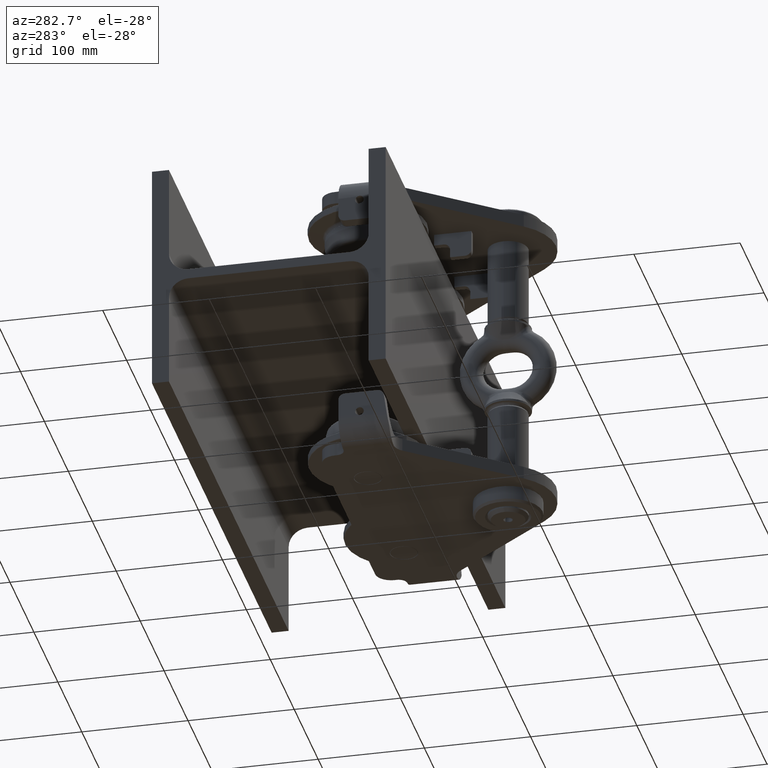
[diagram: clean part render]
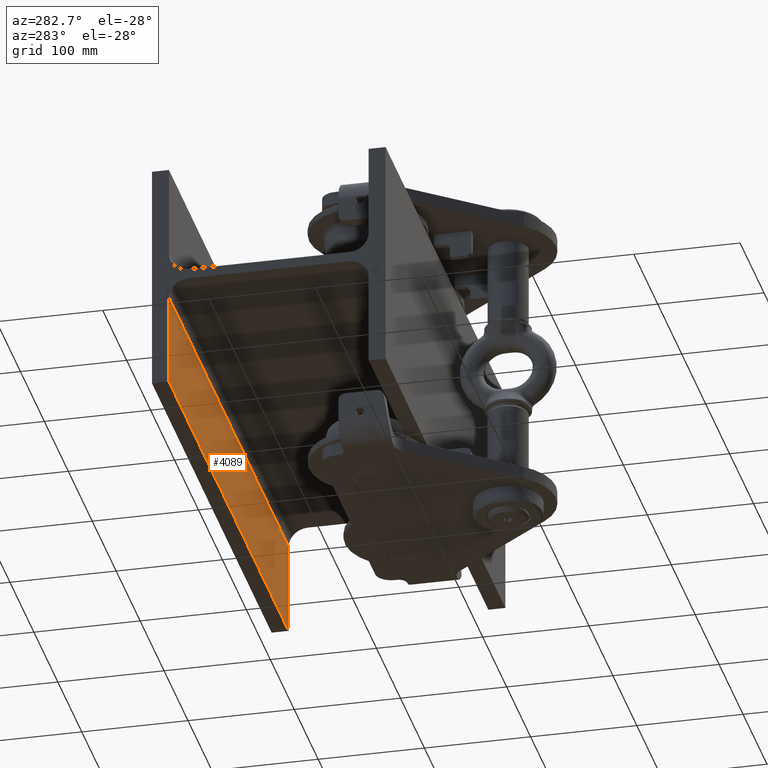
[diagram: same view with one face highlighted and labeled with its STEP entity id]
A machine part, auxiliary view. The second image highlights one B-rep face of the part: STEP entity #4089.
In plain terms, the highlighted planar face has unit normal (0, -1, -0).
Its self-contained STEP definition (entity closure, byte-faithful):
#78 = VECTOR ( 'NONE', #26811, 1000.000000000000000 ) ;
#436 = CARTESIAN_POINT ( 'NONE',  ( -249.9999999999996000, 94.00000000000007100, -109.9999999999999100 ) ) ;
#1197 = LINE ( 'NONE', #14342, #10208 ) ;
#2133 = EDGE_LOOP ( 'NONE', ( #15004, #7463, #15889, #10320 ) ) ;
#3404 = LINE ( 'NONE', #11538, #78 ) ;
#4089 = ADVANCED_FACE ( 'NONE', ( #4238 ), #7047, .T. ) ;
#4238 = FACE_OUTER_BOUND ( 'NONE', #2133, .T. ) ;
#4335 = DIRECTION ( 'NONE',  ( 1.000000000000000000, 0.0000000000000000000, 7.703719777548941700E-034 ) ) ;
#4844 = VECTOR ( 'NONE', #8579, 1000.000000000000000 ) ;
#5536 = CARTESIAN_POINT ( 'NONE',  ( -249.9999999999996000, 94.00000000000001400, -22.74999999999990100 ) ) ;
#6725 = LINE ( 'NONE', #5536, #4844 ) ;
#7047 = PLANE ( 'NONE',  #33100 ) ;
#7463 = ORIENTED_EDGE ( 'NONE', *, *, #32292, .F. ) ;
#8579 = DIRECTION ( 'NONE',  ( 1.925929944387235900E-034, 6.791627250939927600E-016, -1.000000000000000000 ) ) ;
#8876 = CARTESIAN_POINT ( 'NONE',  ( -249.9999999999996000, 94.00000000000001400, -22.74999999999990100 ) ) ;
#10208 = VECTOR ( 'NONE', #4335, 1000.000000000000000 ) ;
#10320 = ORIENTED_EDGE ( 'NONE', *, *, #13907, .T. ) ;
#11538 = CARTESIAN_POINT ( 'NONE',  ( -249.9999999999996000, 94.00000000000007100, -109.9999999999999100 ) ) ;
#13907 = EDGE_CURVE ( 'NONE', #33154, #32620, #3404, .T. ) ;
#14342 = CARTESIAN_POINT ( 'NONE',  ( -249.9999999999996000, 94.00000000000001400, -22.74999999999990100 ) ) ;
#15004 = ORIENTED_EDGE ( 'NONE', *, *, #19067, .F. ) ;
#15058 = VERTEX_POINT ( 'NONE', #8876 ) ;
#15889 = ORIENTED_EDGE ( 'NONE', *, *, #23752, .T. ) ;
#16379 = CARTESIAN_POINT ( 'NONE',  ( -249.9999999999996000, 94.00000000000001400, -22.74999999999990100 ) ) ;
#18903 = DIRECTION ( 'NONE',  ( 1.225336256775793600E-049, -1.000000000000000000, -6.791627250939927600E-016 ) ) ;
#19067 = EDGE_CURVE ( 'NONE', #24891, #32620, #30804, .T. ) ;
#23752 = EDGE_CURVE ( 'NONE', #15058, #33154, #6725, .T. ) ;
#24717 = DIRECTION ( 'NONE',  ( 1.925929944387235900E-034, 6.791627250939927600E-016, -1.000000000000000000 ) ) ;
#24891 = VERTEX_POINT ( 'NONE', #33639 ) ;
#25197 = VECTOR ( 'NONE', #24717, 1000.000000000000000 ) ;
#26811 = DIRECTION ( 'NONE',  ( 1.000000000000000000, 0.0000000000000000000, 7.703719777548941700E-034 ) ) ;
#26878 = CARTESIAN_POINT ( 'NONE',  ( 250.0000000000005100, 94.00000000000007100, -109.9999999999999100 ) ) ;
#30258 = CARTESIAN_POINT ( 'NONE',  ( 250.0000000000005100, 94.00000000000001400, -22.74999999999990100 ) ) ;
#30804 = LINE ( 'NONE', #30258, #25197 ) ;
#31452 = DIRECTION ( 'NONE',  ( 1.925929944387235900E-034, 6.791627250939927600E-016, -1.000000000000000000 ) ) ;
#32292 = EDGE_CURVE ( 'NONE', #15058, #24891, #1197, .T. ) ;
#32620 = VERTEX_POINT ( 'NONE', #26878 ) ;
#33100 = AXIS2_PLACEMENT_3D ( 'NONE', #16379, #18903, #31452 ) ;
#33154 = VERTEX_POINT ( 'NONE', #436 ) ;
#33639 = CARTESIAN_POINT ( 'NONE',  ( 250.0000000000005100, 94.00000000000001400, -22.74999999999990100 ) ) ;